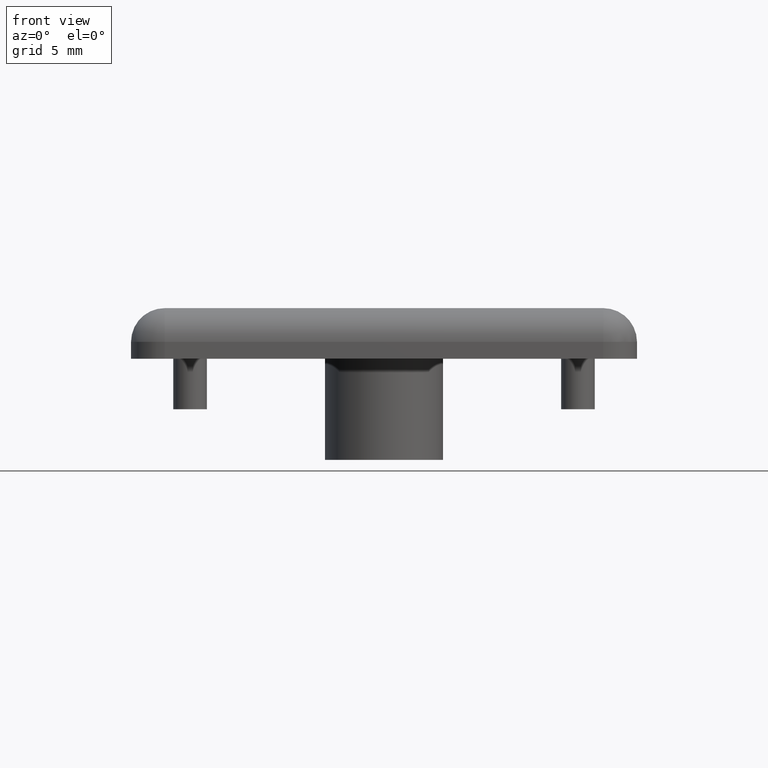
[diagram: clean part render]
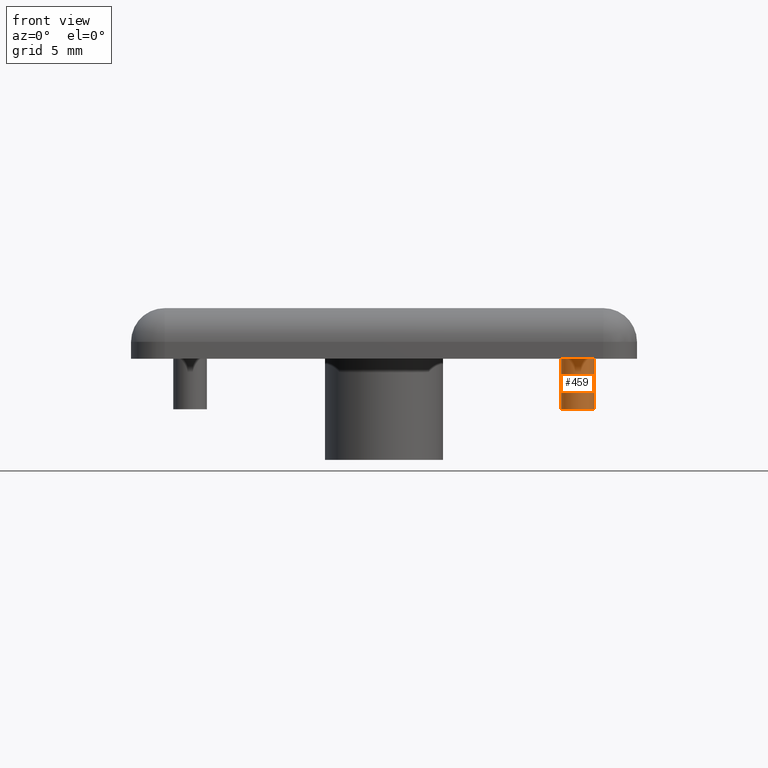
[diagram: same view with one face highlighted and labeled with its STEP entity id]
A machine part, front view. The second image highlights one B-rep face of the part: STEP entity #459.
In plain terms, the highlighted cylindrical surface (edge-blend (fillet) strip) has radius 1 mm, axis along (0, 0, -1).
Its self-contained STEP definition (entity closure, byte-faithful):
#27=LINE('',#754,#63);
#28=LINE('',#757,#64);
#63=VECTOR('',#593,3.);
#64=VECTOR('',#596,3.);
#115=FACE_OUTER_BOUND('',#153,.T.);
#153=EDGE_LOOP('',(#336,#337,#338,#339));
#191=CIRCLE('',#503,1.);
#193=CIRCLE('',#506,1.);
#225=VERTEX_POINT('',#744);
#226=VERTEX_POINT('',#745);
#229=VERTEX_POINT('',#753);
#230=VERTEX_POINT('',#755);
#265=EDGE_CURVE('',#225,#226,#191,.T.);
#269=EDGE_CURVE('',#225,#229,#27,.T.);
#270=EDGE_CURVE('',#230,#229,#193,.T.);
#271=EDGE_CURVE('',#226,#230,#28,.T.);
#336=ORIENTED_EDGE('',*,*,#265,.F.);
#337=ORIENTED_EDGE('',*,*,#269,.T.);
#338=ORIENTED_EDGE('',*,*,#270,.F.);
#339=ORIENTED_EDGE('',*,*,#271,.F.);
#443=CYLINDRICAL_SURFACE('',#505,1.);
#459=ADVANCED_FACE('',(#115),#443,.T.);
#503=AXIS2_PLACEMENT_3D('',#746,#585,#586);
#505=AXIS2_PLACEMENT_3D('',#752,#591,#592);
#506=AXIS2_PLACEMENT_3D('',#756,#594,#595);
#585=DIRECTION('center_axis',(0.,0.,1.));
#586=DIRECTION('ref_axis',(1.,0.,0.));
#591=DIRECTION('center_axis',(0.,0.,-1.));
#592=DIRECTION('ref_axis',(1.,0.,0.));
#593=DIRECTION('',(0.,0.,-1.));
#594=DIRECTION('center_axis',(0.,0.,-1.));
#595=DIRECTION('ref_axis',(1.,0.,0.));
#596=DIRECTION('',(0.,0.,-1.));
#744=CARTESIAN_POINT('',(10.5,-7.5,0.));
#745=CARTESIAN_POINT('',(12.5,-7.5,0.));
#746=CARTESIAN_POINT('Origin',(11.5,-7.5,0.));
#752=CARTESIAN_POINT('Origin',(11.5,-7.5,0.));
#753=CARTESIAN_POINT('',(10.5,-7.5,-3.));
#754=CARTESIAN_POINT('',(10.5,-7.5,0.));
#755=CARTESIAN_POINT('',(12.5,-7.5,-3.));
#756=CARTESIAN_POINT('Origin',(11.5,-7.5,-3.));
#757=CARTESIAN_POINT('',(12.5,-7.5,0.));